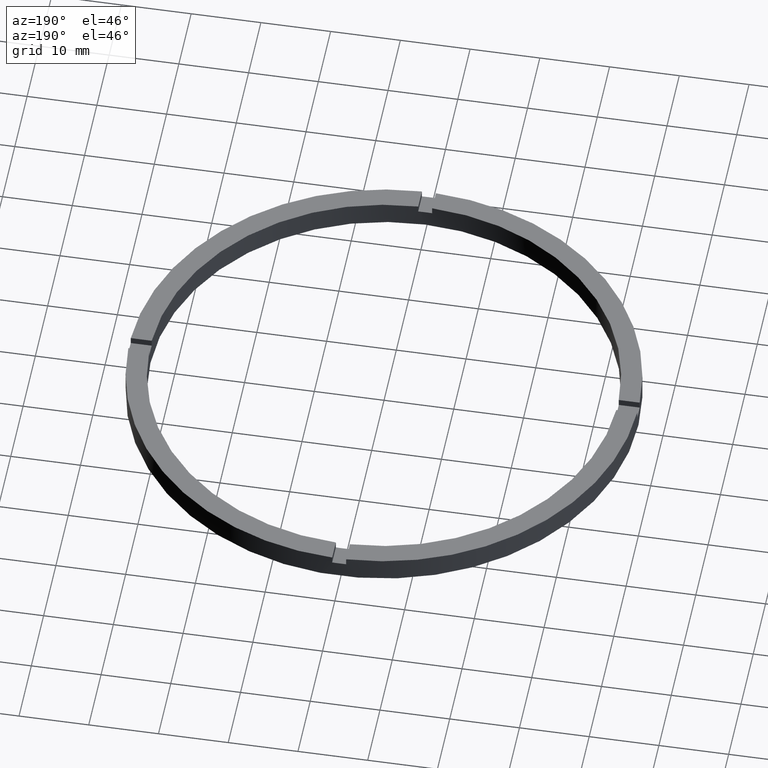
[diagram: clean part render]
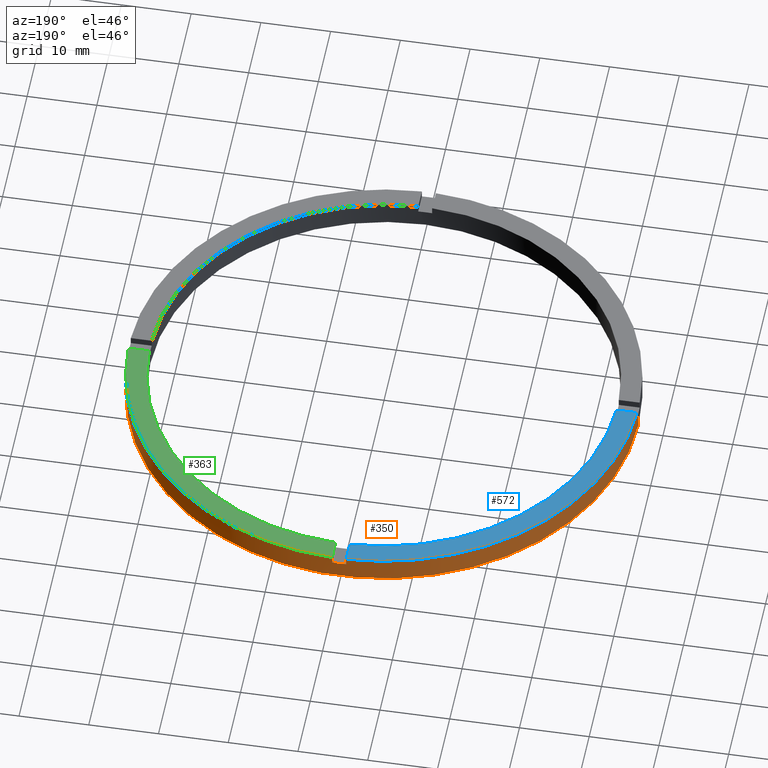
[diagram: same view with three faces highlighted in distinct colors, each labeled with its STEP entity id]
A machine part, auxiliary view with three faces highlighted in distinct colors.
Their STEP definitions:

[orange] entity #350 — the highlighted cylindrical surface (partial cylindrical patch) has radius 36.5 mm, axis along (-0, -0, -1).
#4 = EDGE_CURVE ( 'NONE', #120, #640, #110, .T. ) ;
#14 = ORIENTED_EDGE ( 'NONE', *, *, #393, .F. ) ;
#17 = CARTESIAN_POINT ( 'NONE',  ( 36.50000000000000000, 4.469960816887838430E-15, 2.500000000000000000 ) ) ;
#27 = DIRECTION ( 'NONE',  ( 0.000000000000000000, 0.000000000000000000, 1.000000000000000000 ) ) ;
#32 = DIRECTION ( 'NONE',  ( 0.000000000000000000, -0.000000000000000000, 1.000000000000000000 ) ) ;
#38 = CARTESIAN_POINT ( 'NONE',  ( 36.48629879831606360, 0.9999999999998423483, 3.500000000000000000 ) ) ;
#46 = DIRECTION ( 'NONE',  ( 0.000000000000000000, 0.000000000000000000, 1.000000000000000000 ) ) ;
#58 = LINE ( 'NONE', #754, #80 ) ;
#66 = VECTOR ( 'NONE', #705, 1000.000000000000000 ) ;
#68 = DIRECTION ( 'NONE',  ( 1.000000000000000000, 0.000000000000000000, 0.000000000000000000 ) ) ;
#77 = LINE ( 'NONE', #164, #66 ) ;
#80 = VECTOR ( 'NONE', #463, 1000.000000000000000 ) ;
#94 = VECTOR ( 'NONE', #673, 1000.000000000000000 ) ;
#99 = VECTOR ( 'NONE', #227, 1000.000000000000000 ) ;
#110 = LINE ( 'NONE', #417, #99 ) ;
#114 = LINE ( 'NONE', #541, #94 ) ;
#115 = ORIENTED_EDGE ( 'NONE', *, *, #661, .T. ) ;
#117 = AXIS2_PLACEMENT_3D ( 'NONE', #435, #32, #575 ) ;
#120 = VERTEX_POINT ( 'NONE', #304 ) ;
#122 = VECTOR ( 'NONE', #410, 1000.000000000000000 ) ;
#137 = EDGE_CURVE ( 'NONE', #282, #640, #635, .T. ) ;
#147 = CARTESIAN_POINT ( 'NONE',  ( 0.000000000000000000, 0.000000000000000000, 2.500000000000000000 ) ) ;
#154 = CARTESIAN_POINT ( 'NONE',  ( 0.000000000000000000, 0.000000000000000000, 0.000000000000000000 ) ) ;
#159 = AXIS2_PLACEMENT_3D ( 'NONE', #514, #706, #641 ) ;
#164 = CARTESIAN_POINT ( 'NONE',  ( 36.50000000000000000, 4.469960816887838430E-15, 3.500000000000000000 ) ) ;
#183 = EDGE_CURVE ( 'NONE', #448, #358, #348, .T. ) ;
#185 = CARTESIAN_POINT ( 'NONE',  ( 0.9999999999999749090, 36.48629879831605649, 2.500000000000000000 ) ) ;
#188 = ORIENTED_EDGE ( 'NONE', *, *, #208, .T. ) ;
#191 = ORIENTED_EDGE ( 'NONE', *, *, #137, .T. ) ;
#194 = ORIENTED_EDGE ( 'NONE', *, *, #4, .F. ) ;
#197 = AXIS2_PLACEMENT_3D ( 'NONE', #154, #599, #680 ) ;
#204 = DIRECTION ( 'NONE',  ( 0.000000000000000000, 0.000000000000000000, 1.000000000000000000 ) ) ;
#207 = DIRECTION ( 'NONE',  ( 1.000000000000000000, 0.000000000000000000, 0.000000000000000000 ) ) ;
#208 = EDGE_CURVE ( 'NONE', #274, #358, #114, .T. ) ;
#219 = CARTESIAN_POINT ( 'NONE',  ( -1.000000000000025091, 36.48629879831605649, 3.500000000000000000 ) ) ;
#225 = AXIS2_PLACEMENT_3D ( 'NONE', #248, #445, #68 ) ;
#227 = DIRECTION ( 'NONE',  ( -0.000000000000000000, -0.000000000000000000, -1.000000000000000000 ) ) ;
#244 = EDGE_CURVE ( 'NONE', #666, #771, #380, .T. ) ;
#248 = CARTESIAN_POINT ( 'NONE',  ( 0.000000000000000000, 0.000000000000000000, 2.500000000000000000 ) ) ;
#256 = DIRECTION ( 'NONE',  ( 1.000000000000000000, 0.000000000000000000, 0.000000000000000000 ) ) ;
#260 = EDGE_CURVE ( 'NONE', #274, #377, #416, .T. ) ;
#274 = VERTEX_POINT ( 'NONE', #185 ) ;
#282 = VERTEX_POINT ( 'NONE', #297 ) ;
#297 = CARTESIAN_POINT ( 'NONE',  ( 36.50000000000000000, 4.469960816887838430E-15, 0.000000000000000000 ) ) ;
#304 = CARTESIAN_POINT ( 'NONE',  ( -36.50000000000000000, 0.000000000000000000, 2.500000000000000000 ) ) ;
#308 = AXIS2_PLACEMENT_3D ( 'NONE', #147, #204, #256 ) ;
#324 = CARTESIAN_POINT ( 'NONE',  ( -1.000000000000025091, 36.48629879831605649, 3.500000000000000000 ) ) ;
#337 = LINE ( 'NONE', #324, #598 ) ;
#342 = CIRCLE ( 'NONE', #308, 36.50000000000000000 ) ;
#348 = CIRCLE ( 'NONE', #414, 36.50000000000000000 ) ;
#350 = ADVANCED_FACE ( 'NONE', ( #430 ), #682, .T. ) ;
#358 = VERTEX_POINT ( 'NONE', #718 ) ;
#359 = LINE ( 'NONE', #583, #122 ) ;
#377 = VERTEX_POINT ( 'NONE', #536 ) ;
#380 = CIRCLE ( 'NONE', #455, 36.50000000000000000 ) ;
#393 = EDGE_CURVE ( 'NONE', #608, #523, #676, .T. ) ;
#405 = CARTESIAN_POINT ( 'NONE',  ( 0.000000000000000000, 0.000000000000000000, 3.500000000000000000 ) ) ;
#407 = ORIENTED_EDGE ( 'NONE', *, *, #480, .F. ) ;
#410 = DIRECTION ( 'NONE',  ( 0.000000000000000000, 0.000000000000000000, 1.000000000000000000 ) ) ;
#411 = ORIENTED_EDGE ( 'NONE', *, *, #710, .T. ) ;
#414 = AXIS2_PLACEMENT_3D ( 'NONE', #405, #46, #207 ) ;
#416 = CIRCLE ( 'NONE', #117, 36.50000000000000000 ) ;
#417 = CARTESIAN_POINT ( 'NONE',  ( -36.50000000000000000, 0.000000000000000000, 3.500000000000000000 ) ) ;
#430 = FACE_OUTER_BOUND ( 'NONE', #663, .T. ) ;
#435 = CARTESIAN_POINT ( 'NONE',  ( 0.000000000000000000, 0.000000000000000000, 2.500000000000000000 ) ) ;
#444 = CARTESIAN_POINT ( 'NONE',  ( 0.000000000000000000, 0.000000000000000000, 3.500000000000000000 ) ) ;
#445 = DIRECTION ( 'NONE',  ( 0.000000000000000000, 0.000000000000000000, 1.000000000000000000 ) ) ;
#448 = VERTEX_POINT ( 'NONE', #38 ) ;
#455 = AXIS2_PLACEMENT_3D ( 'NONE', #444, #27, #570 ) ;
#459 = EDGE_CURVE ( 'NONE', #534, #771, #359, .T. ) ;
#463 = DIRECTION ( 'NONE',  ( -0.000000000000000000, -0.000000000000000000, -1.000000000000000000 ) ) ;
#480 = EDGE_CURVE ( 'NONE', #534, #120, #342, .T. ) ;
#512 = CARTESIAN_POINT ( 'NONE',  ( -36.48629879831605649, 0.9999999999999726885, 3.500000000000000000 ) ) ;
#514 = CARTESIAN_POINT ( 'NONE',  ( 0.000000000000000000, 0.000000000000000000, 3.500000000000000000 ) ) ;
#523 = VERTEX_POINT ( 'NONE', #674 ) ;
#532 = ORIENTED_EDGE ( 'NONE', *, *, #260, .F. ) ;
#534 = VERTEX_POINT ( 'NONE', #725 ) ;
#536 = CARTESIAN_POINT ( 'NONE',  ( -1.000000000000025091, 36.48629879831605649, 2.500000000000000000 ) ) ;
#541 = CARTESIAN_POINT ( 'NONE',  ( 0.9999999999999749090, 36.48629879831605649, 3.500000000000000000 ) ) ;
#570 = DIRECTION ( 'NONE',  ( 1.000000000000000000, 0.000000000000000000, 0.000000000000000000 ) ) ;
#575 = DIRECTION ( 'NONE',  ( 1.000000000000000000, 0.000000000000000000, 0.000000000000000000 ) ) ;
#583 = CARTESIAN_POINT ( 'NONE',  ( -36.48629879831605649, 0.9999999999999726885, 3.500000000000000000 ) ) ;
#598 = VECTOR ( 'NONE', #651, 1000.000000000000000 ) ;
#599 = DIRECTION ( 'NONE',  ( 0.000000000000000000, 0.000000000000000000, 1.000000000000000000 ) ) ;
#608 = VERTEX_POINT ( 'NONE', #17 ) ;
#619 = ORIENTED_EDGE ( 'NONE', *, *, #720, .T. ) ;
#635 = CIRCLE ( 'NONE', #197, 36.50000000000000000 ) ;
#640 = VERTEX_POINT ( 'NONE', #763 ) ;
#641 = DIRECTION ( 'NONE',  ( -1.000000000000000000, 0.000000000000000000, 0.000000000000000000 ) ) ;
#651 = DIRECTION ( 'NONE',  ( -0.000000000000000000, -0.000000000000000000, -1.000000000000000000 ) ) ;
#661 = EDGE_CURVE ( 'NONE', #608, #282, #77, .T. ) ;
#663 = EDGE_LOOP ( 'NONE', ( #14, #115, #191, #194, #407, #775, #746, #619, #532, #188, #699, #411 ) ) ;
#666 = VERTEX_POINT ( 'NONE', #219 ) ;
#673 = DIRECTION ( 'NONE',  ( 0.000000000000000000, 0.000000000000000000, 1.000000000000000000 ) ) ;
#674 = CARTESIAN_POINT ( 'NONE',  ( 36.48629879831606360, 0.9999999999998423483, 2.500000000000000000 ) ) ;
#676 = CIRCLE ( 'NONE', #225, 36.50000000000000000 ) ;
#680 = DIRECTION ( 'NONE',  ( 1.000000000000000000, 0.000000000000000000, 0.000000000000000000 ) ) ;
#682 = CYLINDRICAL_SURFACE ( 'NONE', #159, 36.50000000000000000 ) ;
#699 = ORIENTED_EDGE ( 'NONE', *, *, #183, .F. ) ;
#705 = DIRECTION ( 'NONE',  ( -0.000000000000000000, -0.000000000000000000, -1.000000000000000000 ) ) ;
#706 = DIRECTION ( 'NONE',  ( -0.000000000000000000, -0.000000000000000000, -1.000000000000000000 ) ) ;
#710 = EDGE_CURVE ( 'NONE', #448, #523, #58, .T. ) ;
#718 = CARTESIAN_POINT ( 'NONE',  ( 0.9999999999999749090, 36.48629879831605649, 3.500000000000000000 ) ) ;
#720 = EDGE_CURVE ( 'NONE', #666, #377, #337, .T. ) ;
#725 = CARTESIAN_POINT ( 'NONE',  ( -36.48629879831605649, 0.9999999999999726885, 2.500000000000000000 ) ) ;
#746 = ORIENTED_EDGE ( 'NONE', *, *, #244, .F. ) ;
#754 = CARTESIAN_POINT ( 'NONE',  ( 36.48629879831606360, 0.9999999999998423483, 3.500000000000000000 ) ) ;
#763 = CARTESIAN_POINT ( 'NONE',  ( -36.50000000000000000, 0.000000000000000000, 0.000000000000000000 ) ) ;
#771 = VERTEX_POINT ( 'NONE', #512 ) ;
#775 = ORIENTED_EDGE ( 'NONE', *, *, #459, .T. ) ;

[blue] entity #572 — the highlighted planar face has unit normal (0, 0, 1).
#10 = PLANE ( 'NONE',  #589 ) ;
#27 = DIRECTION ( 'NONE',  ( 0.000000000000000000, 0.000000000000000000, 1.000000000000000000 ) ) ;
#82 = EDGE_CURVE ( 'NONE', #666, #493, #104, .T. ) ;
#104 = LINE ( 'NONE', #701, #386 ) ;
#105 = ORIENTED_EDGE ( 'NONE', *, *, #82, .F. ) ;
#109 = CARTESIAN_POINT ( 'NONE',  ( -26.50000000000018474, 0.9999999999999746869, 3.500000000000000000 ) ) ;
#116 = DIRECTION ( 'NONE',  ( 1.000000000000000000, 0.000000000000000000, -0.000000000000000000 ) ) ;
#133 = DIRECTION ( 'NONE',  ( -1.000000000000000000, -1.951563910473907735E-16, 0.000000000000000000 ) ) ;
#136 = VECTOR ( 'NONE', #133, 1000.000000000000000 ) ;
#139 = LINE ( 'NONE', #109, #136 ) ;
#219 = CARTESIAN_POINT ( 'NONE',  ( -1.000000000000025091, 36.48629879831605649, 3.500000000000000000 ) ) ;
#244 = EDGE_CURVE ( 'NONE', #666, #771, #380, .T. ) ;
#263 = EDGE_CURVE ( 'NONE', #627, #771, #139, .T. ) ;
#319 = FACE_OUTER_BOUND ( 'NONE', #600, .T. ) ;
#322 = EDGE_CURVE ( 'NONE', #493, #627, #677, .T. ) ;
#380 = CIRCLE ( 'NONE', #455, 36.50000000000000000 ) ;
#386 = VECTOR ( 'NONE', #687, 1000.000000000000000 ) ;
#444 = CARTESIAN_POINT ( 'NONE',  ( 0.000000000000000000, 0.000000000000000000, 3.500000000000000000 ) ) ;
#446 = ORIENTED_EDGE ( 'NONE', *, *, #244, .T. ) ;
#454 = ORIENTED_EDGE ( 'NONE', *, *, #263, .F. ) ;
#455 = AXIS2_PLACEMENT_3D ( 'NONE', #444, #27, #570 ) ;
#470 = AXIS2_PLACEMENT_3D ( 'NONE', #548, #783, #485 ) ;
#485 = DIRECTION ( 'NONE',  ( 1.000000000000000000, 0.000000000000000000, 0.000000000000000000 ) ) ;
#493 = VERTEX_POINT ( 'NONE', #549 ) ;
#497 = CARTESIAN_POINT ( 'NONE',  ( -33.48507130050644776, 0.9999999999999733546, 3.500000000000000000 ) ) ;
#512 = CARTESIAN_POINT ( 'NONE',  ( -36.48629879831605649, 0.9999999999999726885, 3.500000000000000000 ) ) ;
#548 = CARTESIAN_POINT ( 'NONE',  ( 0.000000000000000000, 0.000000000000000000, 3.500000000000000000 ) ) ;
#549 = CARTESIAN_POINT ( 'NONE',  ( -1.000000000000025091, 33.48507130050644065, 3.500000000000000000 ) ) ;
#570 = DIRECTION ( 'NONE',  ( 1.000000000000000000, 0.000000000000000000, 0.000000000000000000 ) ) ;
#572 = ADVANCED_FACE ( 'NONE', ( #319 ), #10, .T. ) ;
#589 = AXIS2_PLACEMENT_3D ( 'NONE', #612, #658, #116 ) ;
#600 = EDGE_LOOP ( 'NONE', ( #105, #446, #454, #643 ) ) ;
#612 = CARTESIAN_POINT ( 'NONE',  ( 0.000000000000000000, 0.000000000000000000, 3.500000000000000000 ) ) ;
#627 = VERTEX_POINT ( 'NONE', #497 ) ;
#643 = ORIENTED_EDGE ( 'NONE', *, *, #322, .F. ) ;
#658 = DIRECTION ( 'NONE',  ( 0.000000000000000000, 0.000000000000000000, 1.000000000000000000 ) ) ;
#666 = VERTEX_POINT ( 'NONE', #219 ) ;
#677 = CIRCLE ( 'NONE', #470, 33.50000000000000000 ) ;
#687 = DIRECTION ( 'NONE',  ( -0.000000000000000000, -1.000000000000000000, -0.000000000000000000 ) ) ;
#701 = CARTESIAN_POINT ( 'NONE',  ( -1.000000000000025091, 26.49999999999999645, 3.500000000000000000 ) ) ;
#771 = VERTEX_POINT ( 'NONE', #512 ) ;
#783 = DIRECTION ( 'NONE',  ( 0.000000000000000000, 0.000000000000000000, 1.000000000000000000 ) ) ;

[green] entity #363 — the highlighted planar face has unit normal (0, 0, 1).
#2 = CARTESIAN_POINT ( 'NONE',  ( 0.000000000000000000, 0.000000000000000000, 3.500000000000000000 ) ) ;
#38 = CARTESIAN_POINT ( 'NONE',  ( 36.48629879831606360, 0.9999999999998423483, 3.500000000000000000 ) ) ;
#46 = DIRECTION ( 'NONE',  ( 0.000000000000000000, 0.000000000000000000, 1.000000000000000000 ) ) ;
#52 = CIRCLE ( 'NONE', #355, 33.50000000000000000 ) ;
#72 = LINE ( 'NONE', #708, #586 ) ;
#113 = ORIENTED_EDGE ( 'NONE', *, *, #183, .T. ) ;
#134 = VECTOR ( 'NONE', #742, 1000.000000000000000 ) ;
#135 = CARTESIAN_POINT ( 'NONE',  ( 0.000000000000000000, 0.000000000000000000, 3.500000000000000000 ) ) ;
#143 = VERTEX_POINT ( 'NONE', #388 ) ;
#179 = EDGE_CURVE ( 'NONE', #271, #358, #626, .T. ) ;
#183 = EDGE_CURVE ( 'NONE', #448, #358, #348, .T. ) ;
#198 = CARTESIAN_POINT ( 'NONE',  ( 0.9999999999999749090, 33.48507130050644776, 3.500000000000000000 ) ) ;
#199 = DIRECTION ( 'NONE',  ( 0.000000000000000000, 0.000000000000000000, 1.000000000000000000 ) ) ;
#207 = DIRECTION ( 'NONE',  ( 1.000000000000000000, 0.000000000000000000, 0.000000000000000000 ) ) ;
#252 = DIRECTION ( 'NONE',  ( 0.000000000000000000, 0.000000000000000000, 1.000000000000000000 ) ) ;
#257 = ORIENTED_EDGE ( 'NONE', *, *, #522, .F. ) ;
#271 = VERTEX_POINT ( 'NONE', #198 ) ;
#307 = CARTESIAN_POINT ( 'NONE',  ( 0.9999999999999749090, 26.49999999999999645, 3.500000000000000000 ) ) ;
#348 = CIRCLE ( 'NONE', #414, 36.50000000000000000 ) ;
#355 = AXIS2_PLACEMENT_3D ( 'NONE', #2, #252, #456 ) ;
#358 = VERTEX_POINT ( 'NONE', #718 ) ;
#363 = ADVANCED_FACE ( 'NONE', ( #428 ), #773, .T. ) ;
#371 = DIRECTION ( 'NONE',  ( -1.000000000000000000, -6.505213034913025371E-17, -0.000000000000000000 ) ) ;
#388 = CARTESIAN_POINT ( 'NONE',  ( 33.48507130050644776, 0.9999999999998421263, 3.500000000000000000 ) ) ;
#405 = CARTESIAN_POINT ( 'NONE',  ( 0.000000000000000000, 0.000000000000000000, 3.500000000000000000 ) ) ;
#414 = AXIS2_PLACEMENT_3D ( 'NONE', #405, #46, #207 ) ;
#428 = FACE_OUTER_BOUND ( 'NONE', #650, .T. ) ;
#448 = VERTEX_POINT ( 'NONE', #38 ) ;
#456 = DIRECTION ( 'NONE',  ( 1.000000000000000000, 0.000000000000000000, 0.000000000000000000 ) ) ;
#522 = EDGE_CURVE ( 'NONE', #143, #271, #52, .T. ) ;
#533 = ORIENTED_EDGE ( 'NONE', *, *, #179, .F. ) ;
#544 = AXIS2_PLACEMENT_3D ( 'NONE', #135, #199, #630 ) ;
#586 = VECTOR ( 'NONE', #371, 1000.000000000000000 ) ;
#626 = LINE ( 'NONE', #307, #134 ) ;
#630 = DIRECTION ( 'NONE',  ( 1.000000000000000000, 0.000000000000000000, -0.000000000000000000 ) ) ;
#650 = EDGE_LOOP ( 'NONE', ( #533, #257, #740, #113 ) ) ;
#708 = CARTESIAN_POINT ( 'NONE',  ( 26.49999999999998934, 0.9999999999998416822, 3.500000000000000000 ) ) ;
#718 = CARTESIAN_POINT ( 'NONE',  ( 0.9999999999999749090, 36.48629879831605649, 3.500000000000000000 ) ) ;
#727 = EDGE_CURVE ( 'NONE', #448, #143, #72, .T. ) ;
#740 = ORIENTED_EDGE ( 'NONE', *, *, #727, .F. ) ;
#742 = DIRECTION ( 'NONE',  ( 0.000000000000000000, 1.000000000000000000, 0.000000000000000000 ) ) ;
#773 = PLANE ( 'NONE',  #544 ) ;